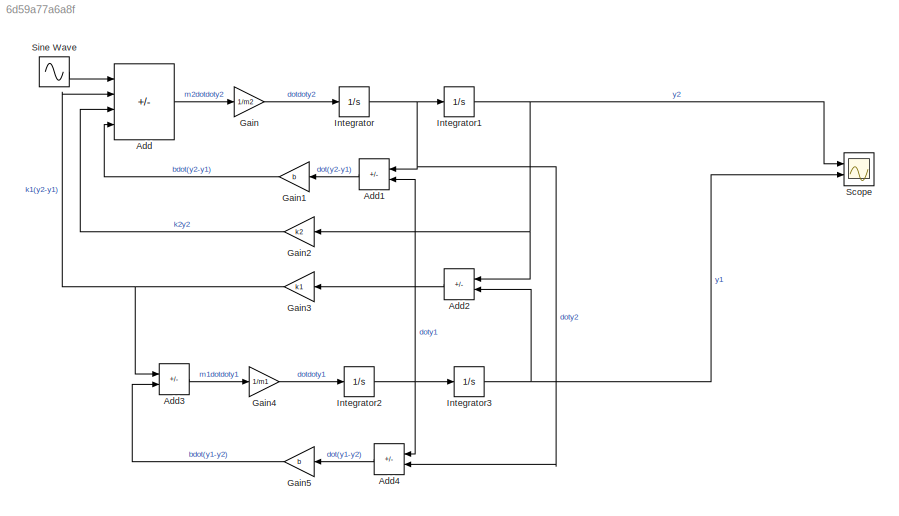
MODEL slx_6d59a77a6a8f
KIND model
CONFIG AbsTol = auto
CONFIG EnableMultiTasking = off
CONFIG FixedStep = auto
CONFIG MaxStep = auto
CONFIG MinStep = auto
CONFIG PostLoadFcn = values.m
CONFIG RelTol = 1e-3
CONFIG SampleTimeConstraint = Unconstrained
CONFIG SolverName = VariableStepAuto
CONFIG StartTime = 0.0
CONFIG StopTime = 100
WORKSPACE source: mxarray member
WORKSPACE b = 500
WORKSPACE k1 = 300
WORKSPACE k2 = 2000
WORKSPACE m1 = 10000
WORKSPACE m2 = 50
BLOCK [Sum] Add
  IconShape = rectangular
  Inputs = +---
  Ports = [4, 1]
BLOCK [Sum] Add1
  IconShape = rectangular
  Inputs = +-
  Ports = [2, 1]
BLOCK [Sum] Add2
  IconShape = rectangular
  Inputs = +-
  Ports = [2, 1]
BLOCK [Sum] Add3
  IconShape = rectangular
  Inputs = +-
  Ports = [2, 1]
BLOCK [Sum] Add4
  IconShape = rectangular
  Inputs = +-
  Ports = [2, 1]
BLOCK [Gain] Gain
  Gain = 1/m2
BLOCK [Gain] Gain1
  Gain = b
BLOCK [Gain] Gain2
  Gain = k2
BLOCK [Gain] Gain3
  Gain = k1
BLOCK [Gain] Gain4
  Gain = 1/m1
BLOCK [Gain] Gain5
  Gain = b
BLOCK [Integrator] Integrator
  Ports = [1, 1]
BLOCK [Integrator] Integrator1
  Ports = [1, 1]
BLOCK [Integrator] Integrator2
  Ports = [1, 1]
BLOCK [Integrator] Integrator3
  Ports = [1, 1]
BLOCK [Scope] Scope
  Floating = off
  NumInputPorts = 2
  Ports = [2]
  ScopeSpecificationString = Simulink.scopes.TimeScopeBlockCfg('CurrentConfiguration', extmgr.ConfigurationSet(extmgr.Configuration('Core','General UI',true),extmgr.Configuration('Core','Source UI',true),extmgr.Configuration('Sources','WiredSimulink',true),extmgr.Configuration('Visuals','Time Domain',true,'SerializedDisplays',{struct('MinYLimReal','-0.00055','MaxYLimReal','0.00056','YLabelReal','','MinYLimMag','0.00000','MaxY...<+2016ch>
BLOCK [Sin] Sine Wave
  Ports = [0, 1]
  SampleTime = 0
LINE Add1:1 -> Gain1:1
LINE Add2:1 -> Gain3:1
LINE Add3:1 -> Gain4:1
LINE Add4:1 -> Gain5:1
LINE Add:1 -> Gain:1
LINE Gain1:1 -> Add:4
LINE Gain2:1 -> Add:3
NET Gain3:1 -> Add3:1, Add:2
LINE Gain4:1 -> Integrator2:1
LINE Gain5:1 -> Add3:2
LINE Gain:1 -> Integrator:1
NET Integrator1:1 -> Add2:1, Gain2:1, Scope:1
NET Integrator2:1 -> Add1:2, Add4:1, Integrator3:1
NET Integrator3:1 -> Add2:2, Scope:2
NET Integrator:1 -> Add1:1, Add4:2, Integrator1:1
LINE Sine Wave:1 -> Add:1
note: NET lines group one-source signal fan-out (src -> all destinations, sorted); 1:1 wires keep LINE
